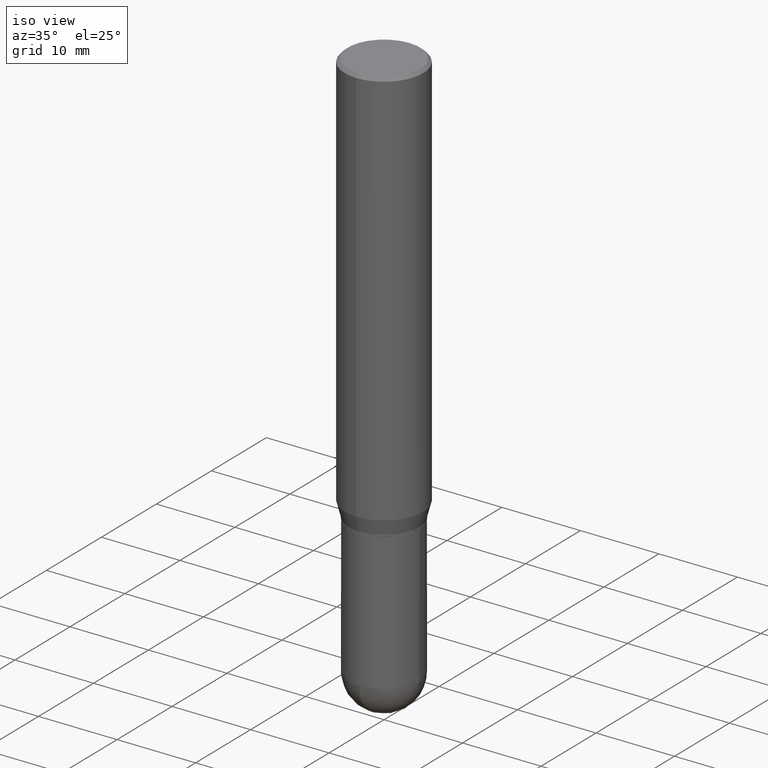
[diagram: clean part render]
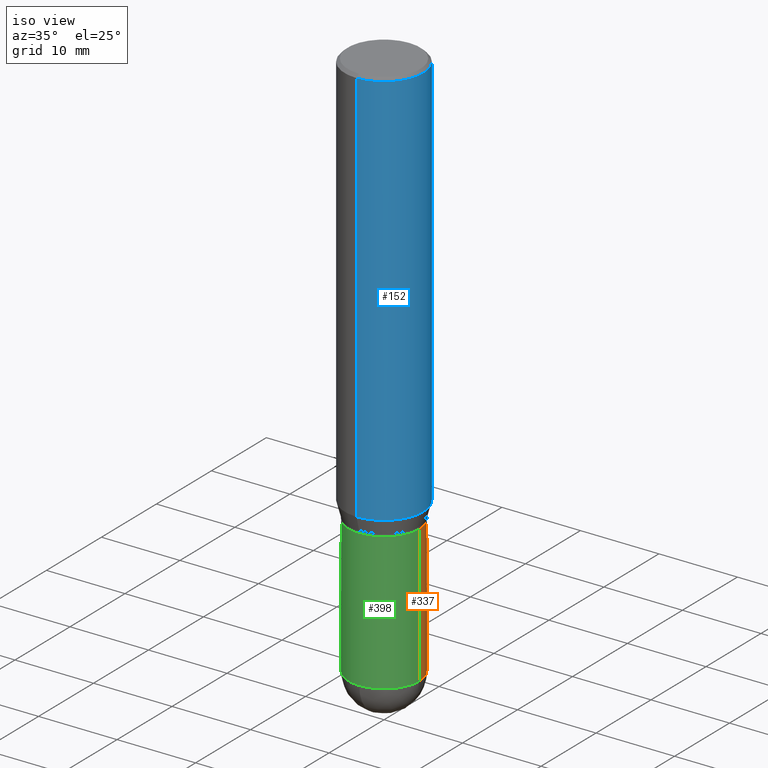
[diagram: same view with three faces highlighted in distinct colors, each labeled with its STEP entity id]
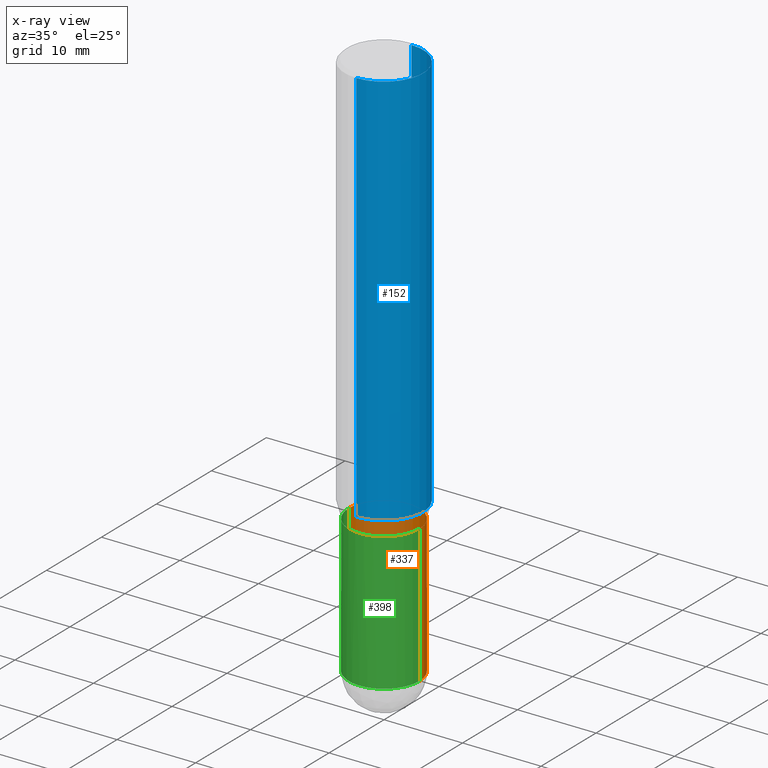
[diagram: x-ray of the same camera — body ghosted, the three highlighted faces saturated]
A machine part, iso view with three faces highlighted in distinct colors.
The next image is the same camera in x-ray (body ghosted, the three faces saturated) — at least one of them is partly hidden behind the body in this view.
Their STEP definitions:

[orange] entity #337 — the highlighted cylindrical surface (partial cylindrical patch) has radius 4.4996 mm, axis along (-0, 0, 1).
#9 = ORIENTED_EDGE ( 'NONE', *, *, #61, .T. ) ;
#13 = DIRECTION ( 'NONE',  ( -2.445468806185136597E-29, 3.491481338843145583E-15, 1.000000000000000000 ) ) ;
#60 = DIRECTION ( 'NONE',  ( 1.000000000000000000, -6.982962677686269077E-15, 0.000000000000000000 ) ) ;
#61 = EDGE_CURVE ( 'NONE', #150, #139, #203, .T. ) ;
#67 = ORIENTED_EDGE ( 'NONE', *, *, #258, .T. ) ;
#76 = VECTOR ( 'NONE', #448, 39.37007874015748143 ) ;
#87 = CARTESIAN_POINT ( 'NONE',  ( 0.1771500000000000574, -1.237031838352122591E-15, 8.638147158322501361E-30 ) ) ;
#88 = VERTEX_POINT ( 'NONE', #202 ) ;
#89 = CARTESIAN_POINT ( 'NONE',  ( -0.1771500000000000574, -7.229675687562965256E-15, -2.775649999999999729 ) ) ;
#107 = CIRCLE ( 'NONE', #368, 0.1771500000000000852 ) ;
#117 = CIRCLE ( 'NONE', #247, 0.1771500000000000574 ) ;
#132 = CARTESIAN_POINT ( 'NONE',  ( -0.1771500000000000574, 1.258726456399017887E-15, -8.713893512386568128E-30 ) ) ;
#137 = VECTOR ( 'NONE', #403, 39.37007874015748143 ) ;
#139 = VERTEX_POINT ( 'NONE', #206 ) ;
#140 = CARTESIAN_POINT ( 'NONE',  ( 0.000000000000000000, 0.000000000000000000, 0.000000000000000000 ) ) ;
#149 = DIRECTION ( 'NONE',  ( -2.445468806185136597E-29, 3.491481338843145583E-15, 1.000000000000000000 ) ) ;
#150 = VERTEX_POINT ( 'NONE', #290 ) ;
#179 = AXIS2_PLACEMENT_3D ( 'NONE', #440, #439, #238 ) ;
#185 = CARTESIAN_POINT ( 'NONE',  ( 0.1771500000000000852, -8.522705948116114900E-15, -2.086699999999999999 ) ) ;
#202 = CARTESIAN_POINT ( 'NONE',  ( -0.1771500000000000852, -7.229675687562965256E-15, -2.086699999999999999 ) ) ;
#203 = CIRCLE ( 'NONE', #179, 0.1771500000000000574 ) ;
#206 = CARTESIAN_POINT ( 'NONE',  ( 1.237031838352190236E-15, 0.1771499999999903430, -2.775650000000000173 ) ) ;
#217 = EDGE_CURVE ( 'NONE', #150, #388, #296, .T. ) ;
#218 = FACE_OUTER_BOUND ( 'NONE', #389, .T. ) ;
#221 = VERTEX_POINT ( 'NONE', #89 ) ;
#238 = DIRECTION ( 'NONE',  ( 1.000000000000000000, -6.982962677686270655E-15, 0.000000000000000000 ) ) ;
#241 = EDGE_CURVE ( 'NONE', #139, #221, #117, .T. ) ;
#247 = AXIS2_PLACEMENT_3D ( 'NONE', #340, #13, #338 ) ;
#258 = EDGE_CURVE ( 'NONE', #221, #88, #486, .T. ) ;
#260 = DIRECTION ( 'NONE',  ( -2.445468806185136597E-29, 3.491481338843145583E-15, 1.000000000000000000 ) ) ;
#267 = ORIENTED_EDGE ( 'NONE', *, *, #396, .F. ) ;
#290 = CARTESIAN_POINT ( 'NONE',  ( 0.1771500000000000574, -9.725433982314104551E-15, -2.775649999999999729 ) ) ;
#296 = LINE ( 'NONE', #87, #76 ) ;
#337 = ADVANCED_FACE ( 'NONE', ( #218 ), #376, .T. ) ;
#338 = DIRECTION ( 'NONE',  ( 1.000000000000000000, -6.982962677686270655E-15, 0.000000000000000000 ) ) ;
#340 = CARTESIAN_POINT ( 'NONE',  ( 6.787765491887772680E-29, -9.691130178159974964E-15, -2.775649999999999729 ) ) ;
#342 = AXIS2_PLACEMENT_3D ( 'NONE', #140, #260, #412 ) ;
#368 = AXIS2_PLACEMENT_3D ( 'NONE', #418, #149, #60 ) ;
#376 = CYLINDRICAL_SURFACE ( 'NONE', #342, 0.1771500000000000574 ) ;
#379 = ORIENTED_EDGE ( 'NONE', *, *, #217, .F. ) ;
#388 = VERTEX_POINT ( 'NONE', #185 ) ;
#389 = EDGE_LOOP ( 'NONE', ( #404, #67, #267, #379, #9 ) ) ;
#396 = EDGE_CURVE ( 'NONE', #388, #88, #107, .T. ) ;
#403 = DIRECTION ( 'NONE',  ( -2.445468806185136877E-29, 3.491481338843145188E-15, 1.000000000000000000 ) ) ;
#404 = ORIENTED_EDGE ( 'NONE', *, *, #241, .T. ) ;
#412 = DIRECTION ( 'NONE',  ( 1.000000000000000000, -6.982962677686266711E-15, 4.876176775795934672E-29 ) ) ;
#418 = CARTESIAN_POINT ( 'NONE',  ( 5.102959757866523939E-29, -7.285674109763990928E-15, -2.086699999999999999 ) ) ;
#439 = DIRECTION ( 'NONE',  ( -2.445468806185136597E-29, 3.491481338843145583E-15, 1.000000000000000000 ) ) ;
#440 = CARTESIAN_POINT ( 'NONE',  ( 6.787765491887772680E-29, -9.691130178159974964E-15, -2.775649999999999729 ) ) ;
#448 = DIRECTION ( 'NONE',  ( -2.445468806185136877E-29, 3.491481338843145188E-15, 1.000000000000000000 ) ) ;
#486 = LINE ( 'NONE', #132, #137 ) ;

[blue] entity #152 — the highlighted cylindrical surface (partial cylindrical patch) has radius 5 mm, axis along (-0, 0, 1).
#5 = VECTOR ( 'NONE', #430, 39.37007874015748143 ) ;
#8 = EDGE_CURVE ( 'NONE', #156, #413, #419, .T. ) ;
#14 = VECTOR ( 'NONE', #498, 39.37007874015748143 ) ;
#22 = EDGE_LOOP ( 'NONE', ( #265, #29, #256, #314 ) ) ;
#29 = ORIENTED_EDGE ( 'NONE', *, *, #8, .T. ) ;
#36 = DIRECTION ( 'NONE',  ( -2.445858467022432184E-29, 3.490923322346020788E-15, 1.000000000000000000 ) ) ;
#38 = DIRECTION ( 'NONE',  ( -6.982962677686265922E-15, -1.000000000000000000, 4.163344669033675634E-15 ) ) ;
#43 = CYLINDRICAL_SURFACE ( 'NONE', #193, 0.1968499999999999694 ) ;
#74 = DIRECTION ( 'NONE',  ( -2.445858467022432184E-29, 3.490923322346020788E-15, 1.000000000000000000 ) ) ;
#75 = EDGE_CURVE ( 'NONE', #275, #156, #327, .T. ) ;
#142 = CARTESIAN_POINT ( 'NONE',  ( 1.398703375343806303E-15, 0.1968499999999999139, -0.01500000000000155549 ) ) ;
#146 = EDGE_CURVE ( 'NONE', #453, #413, #223, .T. ) ;
#152 = ADVANCED_FACE ( 'NONE', ( #282 ), #43, .T. ) ;
#154 = EDGE_CURVE ( 'NONE', #275, #453, #363, .T. ) ;
#156 = VERTEX_POINT ( 'NONE', #324 ) ;
#163 = CARTESIAN_POINT ( 'NONE',  ( -1.374596203102541214E-15, -0.1968499999999999694, 6.871882560038140128E-16 ) ) ;
#172 = AXIS2_PLACEMENT_3D ( 'NONE', #285, #36, #38 ) ;
#193 = AXIS2_PLACEMENT_3D ( 'NONE', #322, #280, #197 ) ;
#197 = DIRECTION ( 'NONE',  ( -6.982962677686265922E-15, -1.000000000000000000, 3.490923322346020394E-15 ) ) ;
#223 = CIRCLE ( 'NONE', #502, 0.1968500000000000250 ) ;
#256 = ORIENTED_EDGE ( 'NONE', *, *, #146, .F. ) ;
#265 = ORIENTED_EDGE ( 'NONE', *, *, #75, .T. ) ;
#275 = VERTEX_POINT ( 'NONE', #451 ) ;
#280 = DIRECTION ( 'NONE',  ( -2.445858467022432184E-29, 3.490923322346020788E-15, 1.000000000000000000 ) ) ;
#282 = FACE_OUTER_BOUND ( 'NONE', #22, .T. ) ;
#285 = CARTESIAN_POINT ( 'NONE',  ( 4.899491337544596904E-29, -6.992942890390830746E-15, -2.003178599090893464 ) ) ;
#314 = ORIENTED_EDGE ( 'NONE', *, *, #154, .F. ) ;
#322 = CARTESIAN_POINT ( 'NONE',  ( 0.000000000000000000, 0.000000000000000000, 0.000000000000000000 ) ) ;
#324 = CARTESIAN_POINT ( 'NONE',  ( 1.398703375343805514E-15, 0.1968499999999929750, -2.003178599090894352 ) ) ;
#327 = CIRCLE ( 'NONE', #172, 0.1968499999999999694 ) ;
#354 = CARTESIAN_POINT ( 'NONE',  ( 1.398703375343756802E-15, 0.1968499999999999694, -6.871882560038140128E-16 ) ) ;
#363 = LINE ( 'NONE', #163, #5 ) ;
#370 = DIRECTION ( 'NONE',  ( -6.982962677686265133E-15, -1.000000000000000000, 3.491137977679279424E-15 ) ) ;
#413 = VERTEX_POINT ( 'NONE', #142 ) ;
#419 = LINE ( 'NONE', #354, #14 ) ;
#430 = DIRECTION ( 'NONE',  ( -2.445858467022432184E-29, 3.490923322346021182E-15, 1.000000000000000000 ) ) ;
#451 = CARTESIAN_POINT ( 'NONE',  ( -1.374596203102492502E-15, -0.1968500000000069916, -2.003178599090893020 ) ) ;
#453 = VERTEX_POINT ( 'NONE', #463 ) ;
#463 = CARTESIAN_POINT ( 'NONE',  ( -1.374596203102541017E-15, -0.1968500000000000805, -0.01500000000000018159 ) ) ;
#474 = CARTESIAN_POINT ( 'NONE',  ( 3.668787700533860766E-31, -5.236384983519334795E-17, -0.01500000000000086854 ) ) ;
#498 = DIRECTION ( 'NONE',  ( -2.445858467022432184E-29, 3.490923322346021182E-15, 1.000000000000000000 ) ) ;
#502 = AXIS2_PLACEMENT_3D ( 'NONE', #474, #74, #370 ) ;

[green] entity #398 — the highlighted cylindrical surface (partial cylindrical patch) has radius 4.4996 mm, axis along (-0, 0, 1).
#24 = DIRECTION ( 'NONE',  ( 1.000000000000000000, -6.982962677686270655E-15, 0.000000000000000000 ) ) ;
#27 = VERTEX_POINT ( 'NONE', #207 ) ;
#47 = AXIS2_PLACEMENT_3D ( 'NONE', #508, #397, #82 ) ;
#54 = CARTESIAN_POINT ( 'NONE',  ( 5.102959757866523939E-29, -7.285674109763990928E-15, -2.086699999999999999 ) ) ;
#76 = VECTOR ( 'NONE', #448, 39.37007874015748143 ) ;
#82 = DIRECTION ( 'NONE',  ( 1.000000000000000000, -6.982962677686270655E-15, 0.000000000000000000 ) ) ;
#87 = CARTESIAN_POINT ( 'NONE',  ( 0.1771500000000000574, -1.237031838352122591E-15, 8.638147158322501361E-30 ) ) ;
#88 = VERTEX_POINT ( 'NONE', #202 ) ;
#89 = CARTESIAN_POINT ( 'NONE',  ( -0.1771500000000000574, -7.229675687562965256E-15, -2.775649999999999729 ) ) ;
#98 = FACE_OUTER_BOUND ( 'NONE', #445, .T. ) ;
#102 = ORIENTED_EDGE ( 'NONE', *, *, #217, .T. ) ;
#109 = DIRECTION ( 'NONE',  ( 1.000000000000000000, -6.982962677686266711E-15, 4.876176775795934672E-29 ) ) ;
#128 = EDGE_CURVE ( 'NONE', #221, #27, #212, .T. ) ;
#132 = CARTESIAN_POINT ( 'NONE',  ( -0.1771500000000000574, 1.258726456399017887E-15, -8.713893512386568128E-30 ) ) ;
#137 = VECTOR ( 'NONE', #403, 39.37007874015748143 ) ;
#150 = VERTEX_POINT ( 'NONE', #290 ) ;
#180 = AXIS2_PLACEMENT_3D ( 'NONE', #317, #493, #24 ) ;
#185 = CARTESIAN_POINT ( 'NONE',  ( 0.1771500000000000852, -8.522705948116114900E-15, -2.086699999999999999 ) ) ;
#202 = CARTESIAN_POINT ( 'NONE',  ( -0.1771500000000000852, -7.229675687562965256E-15, -2.086699999999999999 ) ) ;
#207 = CARTESIAN_POINT ( 'NONE',  ( -1.258726456398949454E-15, -0.1771500000000097441, -2.775649999999999284 ) ) ;
#212 = CIRCLE ( 'NONE', #47, 0.1771500000000000574 ) ;
#215 = ORIENTED_EDGE ( 'NONE', *, *, #258, .F. ) ;
#217 = EDGE_CURVE ( 'NONE', #150, #388, #296, .T. ) ;
#220 = DIRECTION ( 'NONE',  ( -2.445468806185136597E-29, 3.491481338843145583E-15, 1.000000000000000000 ) ) ;
#221 = VERTEX_POINT ( 'NONE', #89 ) ;
#248 = AXIS2_PLACEMENT_3D ( 'NONE', #348, #347, #109 ) ;
#255 = DIRECTION ( 'NONE',  ( 1.000000000000000000, -6.982962677686269077E-15, 0.000000000000000000 ) ) ;
#258 = EDGE_CURVE ( 'NONE', #221, #88, #486, .T. ) ;
#273 = AXIS2_PLACEMENT_3D ( 'NONE', #54, #220, #255 ) ;
#290 = CARTESIAN_POINT ( 'NONE',  ( 0.1771500000000000574, -9.725433982314104551E-15, -2.775649999999999729 ) ) ;
#296 = LINE ( 'NONE', #87, #76 ) ;
#304 = ORIENTED_EDGE ( 'NONE', *, *, #128, .T. ) ;
#313 = EDGE_CURVE ( 'NONE', #88, #388, #362, .T. ) ;
#317 = CARTESIAN_POINT ( 'NONE',  ( 6.787765491887772680E-29, -9.691130178159974964E-15, -2.775649999999999729 ) ) ;
#347 = DIRECTION ( 'NONE',  ( -2.445468806185136597E-29, 3.491481338843145583E-15, 1.000000000000000000 ) ) ;
#348 = CARTESIAN_POINT ( 'NONE',  ( 0.000000000000000000, 0.000000000000000000, 0.000000000000000000 ) ) ;
#362 = CIRCLE ( 'NONE', #273, 0.1771500000000000852 ) ;
#387 = CYLINDRICAL_SURFACE ( 'NONE', #248, 0.1771500000000000574 ) ;
#388 = VERTEX_POINT ( 'NONE', #185 ) ;
#397 = DIRECTION ( 'NONE',  ( -2.445468806185136597E-29, 3.491481338843145583E-15, 1.000000000000000000 ) ) ;
#398 = ADVANCED_FACE ( 'NONE', ( #98 ), #387, .T. ) ;
#403 = DIRECTION ( 'NONE',  ( -2.445468806185136877E-29, 3.491481338843145188E-15, 1.000000000000000000 ) ) ;
#417 = ORIENTED_EDGE ( 'NONE', *, *, #313, .F. ) ;
#445 = EDGE_LOOP ( 'NONE', ( #215, #304, #460, #102, #417 ) ) ;
#448 = DIRECTION ( 'NONE',  ( -2.445468806185136877E-29, 3.491481338843145188E-15, 1.000000000000000000 ) ) ;
#460 = ORIENTED_EDGE ( 'NONE', *, *, #467, .T. ) ;
#467 = EDGE_CURVE ( 'NONE', #27, #150, #496, .T. ) ;
#486 = LINE ( 'NONE', #132, #137 ) ;
#493 = DIRECTION ( 'NONE',  ( -2.445468806185136597E-29, 3.491481338843145583E-15, 1.000000000000000000 ) ) ;
#496 = CIRCLE ( 'NONE', #180, 0.1771500000000000574 ) ;
#508 = CARTESIAN_POINT ( 'NONE',  ( 6.787765491887772680E-29, -9.691130178159974964E-15, -2.775649999999999729 ) ) ;